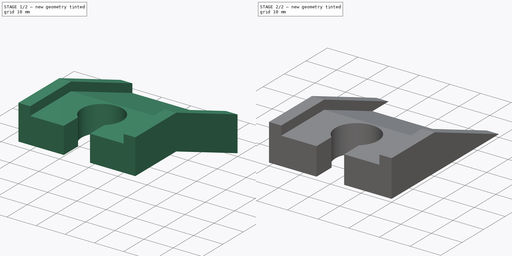
[diagram: build sequence overview — one tinted view per stage of 2, left to right]
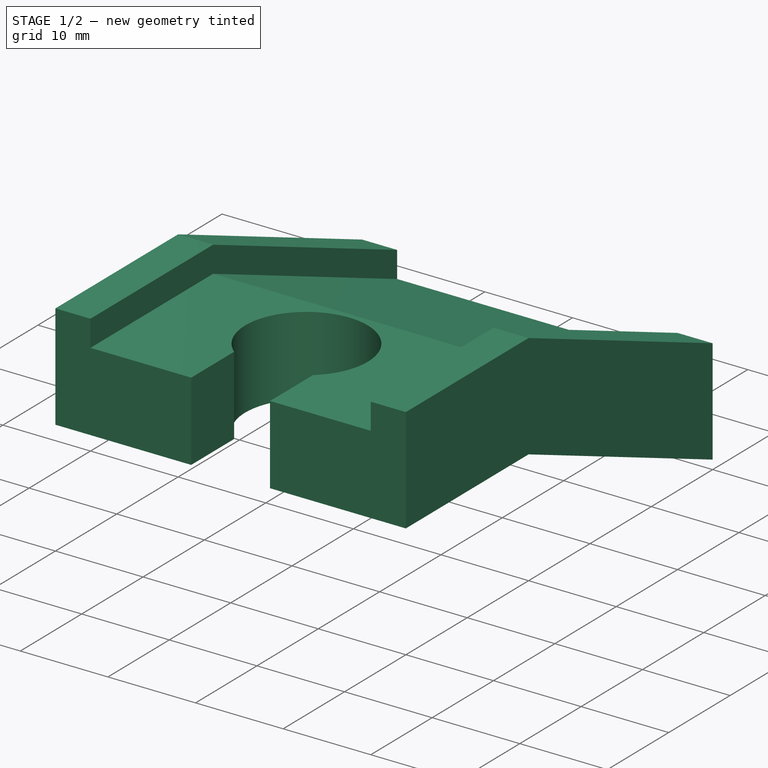
[diagram: stage 1 of 2 — iso view after this stage's code; geometry added in this stage tinted green]
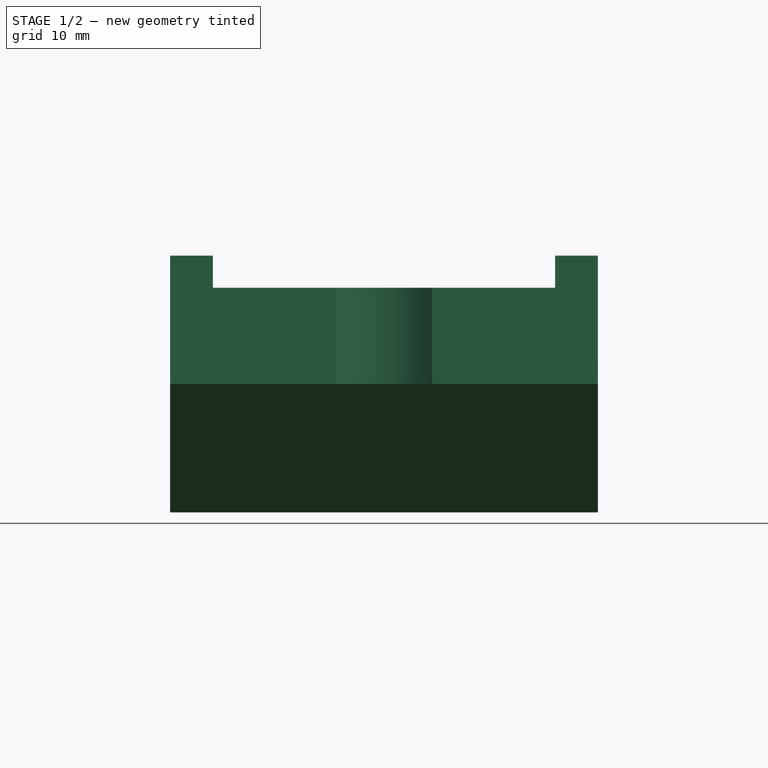
[diagram: stage 1 of 2 — front view after this stage's code; geometry added in this stage tinted green]
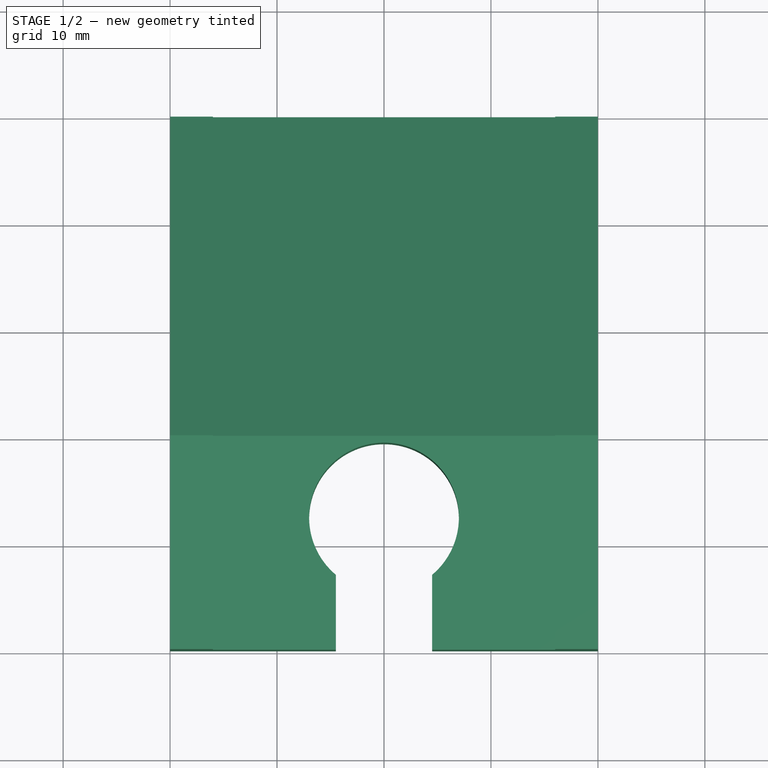
[diagram: stage 1 of 2 — top view after this stage's code; geometry added in this stage tinted green]
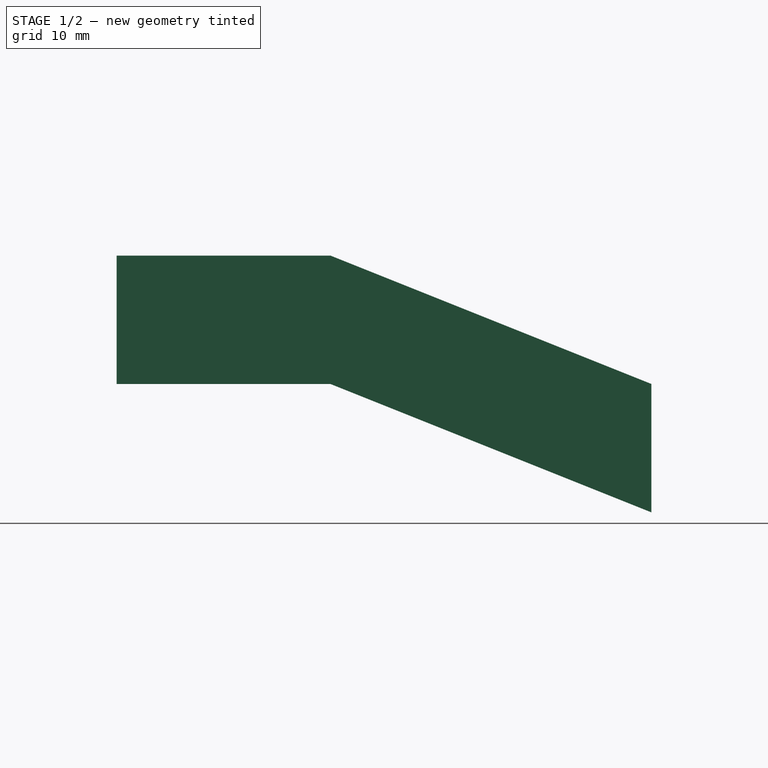
[diagram: stage 1 of 2 — right view after this stage's code; geometry added in this stage tinted green]
FCSTD DOCUMENT  (FreeCAD 0.19R24291 (Git))
Label: road surface ramp F mk3 
License: All rights reserved
LicenseURL: http://en.wikipedia.org/wiki/All_rights_reserved
objects: Sketcher::SketchObject×4, PartDesign::Pocket×2, PartDesign::AdditivePipe×1, PartDesign::Body×1
note: 11 computed .brp shape members not serialized (recipe doc carries the construction recipe); baked Part::Feature solids carry a one-line shape summary decoded from their .brp

FEATURE [Sketcher::SketchObject] Sketch
  FullyConstrained = true
  MapMode = 5
  Placement = pos=(0,0,0) rot=(0.57735,0.57735,0.57735;2.0944rad)
  Support = -> [YZ_Plane]
  sketch-geometry (4):
    g0: LineSegment StartX=0 StartY=0 StartZ=0 EndX=20 EndY=0 EndZ=0
    g1: LineSegment StartX=20 StartY=0 StartZ=0 EndX=20 EndY=-12 EndZ=0
    g2: LineSegment StartX=20 StartY=-12 StartZ=0 EndX=50 EndY=-12 EndZ=0
    g3: LineSegment StartX=20 StartY=0 StartZ=0 EndX=50 EndY=-12 EndZ=0
  constraints (11):
    c: Coincident(g0,g-1)
    c: PointOnObject(g0,g-1)
    c: Distance(g0) = 20
    c: Coincident(g1,g0)
    c: Vertical(g1)
    c: Coincident(g2,g1)
    c: Horizontal(g2)
    c: Coincident(g3,g0)
    c: Coincident(g3,g2)
    c: DistanceX(g0,g3) = 50
    c: Distance(g1) = 12
FEATURE [Sketcher::SketchObject] Sketch001
  FullyConstrained = true
  MapMode = 5
  Placement = pos=(0,0,0) rot=(1,0,0;1.5708rad)
  Support = -> [XZ_Plane]
  sketch-geometry (18):
    g0: LineSegment StartX=-20 StartY=6 StartZ=0 EndX=-20 EndY=-6 EndZ=0
    g1: LineSegment StartX=-20 StartY=6 StartZ=0 EndX=-16 EndY=6 EndZ=0
    g2: LineSegment StartX=-16 StartY=6 StartZ=0 EndX=-16 EndY=3 EndZ=0
    g3: LineSegment StartX=-16 StartY=3 StartZ=0 EndX=-9 EndY=3 EndZ=0
    g4: LineSegment StartX=-9 StartY=3 StartZ=0 EndX=-9 EndY=6 EndZ=0
    g5: LineSegment StartX=-9 StartY=6 StartZ=0 EndX=9 EndY=6 EndZ=0
    g6: LineSegment StartX=9 StartY=6 StartZ=0 EndX=9 EndY=3 EndZ=0
    g7: LineSegment StartX=9 StartY=3 StartZ=0 EndX=16 EndY=3 EndZ=0
    g8: LineSegment StartX=16 StartY=3 StartZ=0 EndX=16 EndY=6 EndZ=0
    g9: LineSegment StartX=16 StartY=6 StartZ=0 EndX=20 EndY=6 EndZ=0
    g10: LineSegment StartX=20 StartY=6 StartZ=0 EndX=20 EndY=-6 EndZ=0
    g11: LineSegment StartX=20 StartY=-6 StartZ=0 EndX=-20 EndY=-6 EndZ=0
    g12: LineSegment StartX=-16 StartY=6 StartZ=0 EndX=-9 EndY=6 EndZ=0
    g13: LineSegment StartX=9 StartY=6 StartZ=0 EndX=16 EndY=6 EndZ=0
    g14: LineSegment StartX=-9 StartY=3 StartZ=0 EndX=9 EndY=3 EndZ=0
    g15: LineSegment StartX=-20 StartY=-6 StartZ=0 EndX=20 EndY=6 EndZ=0
    g16: LineSegment StartX=-20 StartY=6 StartZ=0 EndX=20 EndY=-6 EndZ=0
    g17: GeomPoint X=0 Y=0 Z=0
  constraints (47):
    c: Vertical(g0)
    c: Coincident(g1,g0)
    c: Horizontal(g1)
    c: Coincident(g2,g1)
    c: Vertical(g2)
    c: Coincident(g3,g2)
    c: Horizontal(g3)
    c: Coincident(g4,g3)
    c: Vertical(g4)
    c: Coincident(g5,g4)
    c: Horizontal(g5)
    c: Coincident(g6,g5)
    c: Coincident(g7,g6)
    c: Horizontal(g7)
    c: Coincident(g8,g7)
    c: Coincident(g9,g8)
    c: Horizontal(g9)
    c: Coincident(g10,g9)
    c: Coincident(g11,g10)
    c: Coincident(g11,g0)
    c: Vertical(g10)
    c: Vertical(g8)
    c: Vertical(g6)
    c: Horizontal(g11)
    c: Coincident(g12,g1)
    c: Coincident(g12,g4)
    c: Coincident(g13,g5)
    c: Coincident(g13,g8)
    c: Coincident(g14,g3)
    c: Coincident(g14,g6)
    c: Horizontal(g14)
    c: Horizontal(g13)
    c: Equal(g3,g7)
    c: Equal(g2,g6)
    c: Equal(g9,g1)
    c: DistanceY(g0,g0) = 12
    c: Distance(g5) = 18
    c: Distance(g1) = 4
    c: Distance(g3) = 7
    c: Distance(g8) = 3
    c: Coincident(g15,g0)
    c: Coincident(g15,g9)
    c: Coincident(g16,g0)
    c: Coincident(g16,g10)
    c: PointOnObject(g17,g16)
    c: PointOnObject(g17,g15)
    c: Coincident(g17,g-1)
FEATURE [PartDesign::AdditivePipe] AdditivePipe
  AuxilleryCurvelinear = true
  AuxillerySpineTangent = false
  Binormal = (0,0,0)
  Mode = 0
  Placement = pos=(0,0,0) rot=(1,0,0;1.5708rad)
  Profile = -> Sketch001
  Spine = -> Sketch
  SpineTangent = false
  Transformation = 0
  Transition = 0
FEATURE [Sketcher::SketchObject] Sketch003
  ExternalGeometry = -> [AdditivePipe]
  FullyConstrained = true
  MapMode = 5
  Placement = pos=(0,1e-15,6) rot=(0,0,1;3.14159rad)
  sketch-geometry (6):
    g0: LineSegment StartX=-9 StartY=3e-16 StartZ=0 EndX=-4.5 EndY=3e-16 EndZ=0
    g1: LineSegment StartX=9 StartY=3e-16 StartZ=0 EndX=4.5 EndY=3e-16 EndZ=0
    g2: LineSegment StartX=-4.5 StartY=3e-16 StartZ=0 EndX=4.5 EndY=3e-16 EndZ=0
    g3: LineSegment StartX=4.5 StartY=3e-16 StartZ=0 EndX=4.5 EndY=-7 EndZ=0
    g4: LineSegment StartX=-4.5 StartY=3e-16 StartZ=0 EndX=-4.5 EndY=-7 EndZ=0
    g5: ArcOfCircle CenterX=5.1157e-12 CenterY=-12.3619 CenterZ=0 NormalX=0 NormalY=0 NormalZ=1 AngleXU=0 Radius=7 StartAngle=2.26902 EndAngle=7.15576
  constraints (17):
    c: Coincident(g0,g-3)
    c: PointOnObject(g0,g-3)
    c: Coincident(g1,g-3)
    c: PointOnObject(g1,g-3)
    c: Coincident(g2,g0)
    c: Coincident(g2,g1)
    c: Coincident(g3,g2)
    c: Vertical(g3)
    c: Coincident(g4,g2)
    c: Vertical(g4)
    c: Distance(g2) = 9
    c: Distance(g4) = 7
    c: Diameter(g5) = 14
    c: Equal(g0,g1)
    c: Equal(g3,g4)
    c: Coincident(g5,g4)
    c: Coincident(g5,g3)
FEATURE [PartDesign::Pocket] Pocket
  BaseFeature = -> AdditivePipe
  Length = 5
  Length2 = 100
  Midplane = true
  Placement = pos=(0,0,0) rot=(1,0,0;1.5708rad)
  Profile = -> Sketch003
  Type = 1
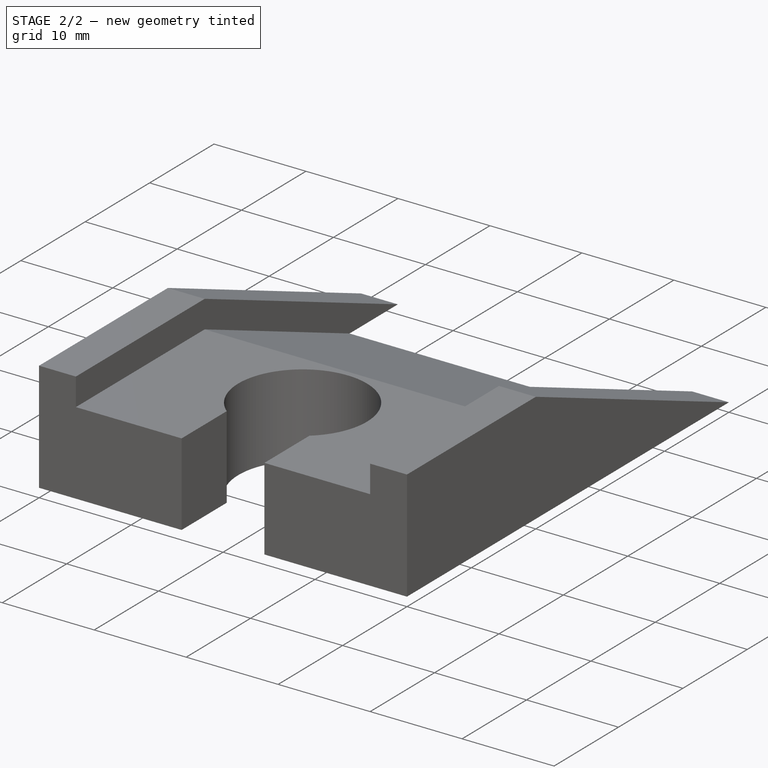
[diagram: stage 2 of 2 — iso view after this stage's code; geometry added in this stage tinted green]
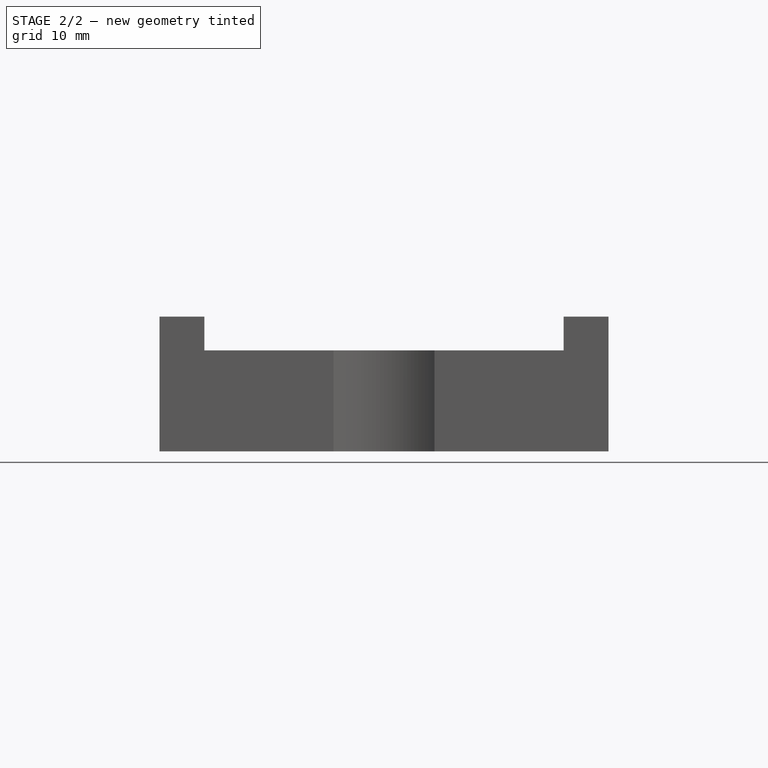
[diagram: stage 2 of 2 — front view after this stage's code; geometry added in this stage tinted green]
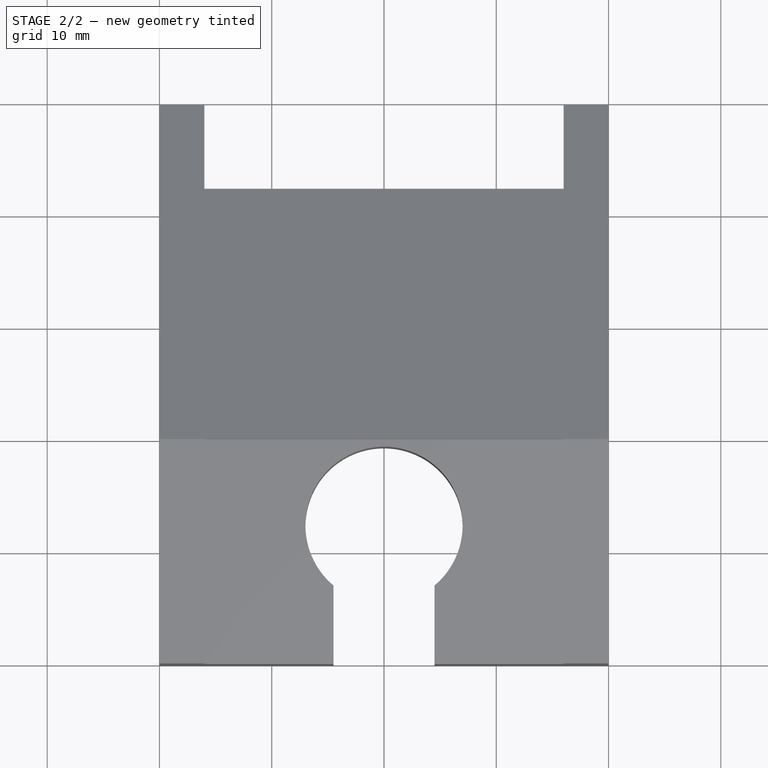
[diagram: stage 2 of 2 — top view after this stage's code; geometry added in this stage tinted green]
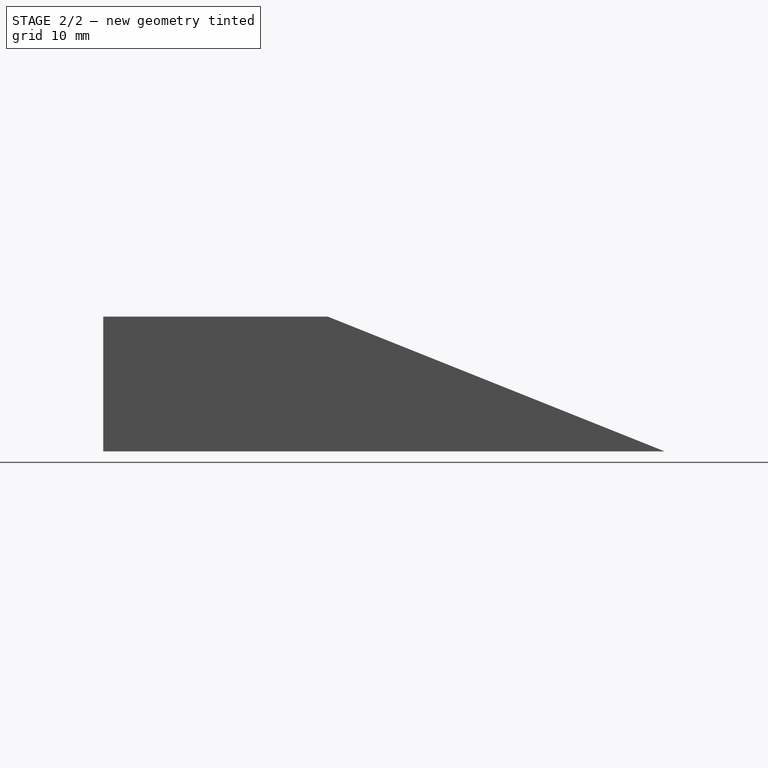
[diagram: stage 2 of 2 — right view after this stage's code; geometry added in this stage tinted green]
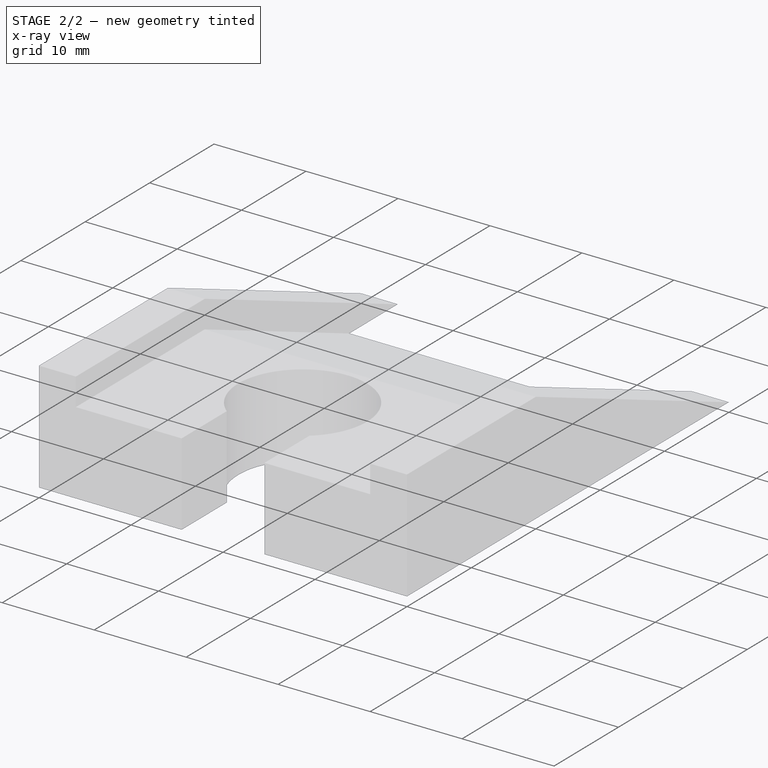
[diagram: stage 2 of 2 — x-ray composite at the iso view; earlier geometry ghosted, this stage's added geometry solid]
FEATURE [Sketcher::SketchObject] Sketch004
  ExternalGeometry = -> [Pocket]
  FullyConstrained = true
  MapMode = 5
  Placement = pos=(0,0,0) rot=(1,0,0;1.5708rad)
  Support = -> [XZ_Plane]
  sketch-geometry (4):
    g0: LineSegment StartX=-20 StartY=-18 StartZ=0 EndX=20 EndY=-18 EndZ=0
    g1: LineSegment StartX=20 StartY=-18 StartZ=0 EndX=20 EndY=-6 EndZ=0
    g2: LineSegment StartX=-20 StartY=-18 StartZ=0 EndX=-20 EndY=-6 EndZ=0
    g3: LineSegment StartX=-20 StartY=-6 StartZ=0 EndX=20 EndY=-6 EndZ=0
  constraints (9):
    c: Coincident(g0,g-4)
    c: Coincident(g0,g-4)
    c: Coincident(g1,g0)
    c: Coincident(g1,g-3)
    c: Coincident(g2,g0)
    c: Vertical(g2)
    c: Coincident(g3,g2)
    c: Coincident(g3,g1)
    c: Horizontal(g3)
FEATURE [PartDesign::Pocket] Pocket001
  BaseFeature = -> Pocket
  Length = 5
  Length2 = 100
  Midplane = true
  Placement = pos=(0,0,0) rot=(1,0,0;1.5708rad)
  Profile = -> Sketch004
  Type = 1
FEATURE [PartDesign::Body] Body
  Group = -> [Sketch,Sketch001,AdditivePipe,Sketch003,Pocket,Sketch004,Pocket001]
  Origin = -> Origin
  Tip = -> Pocket001
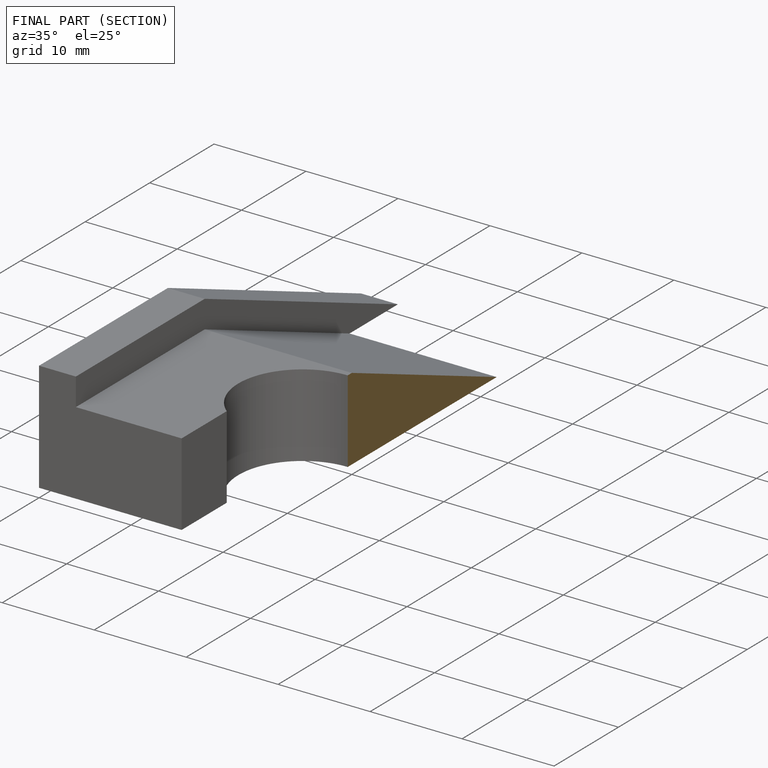
[diagram: finished part — half-section view (interior)]
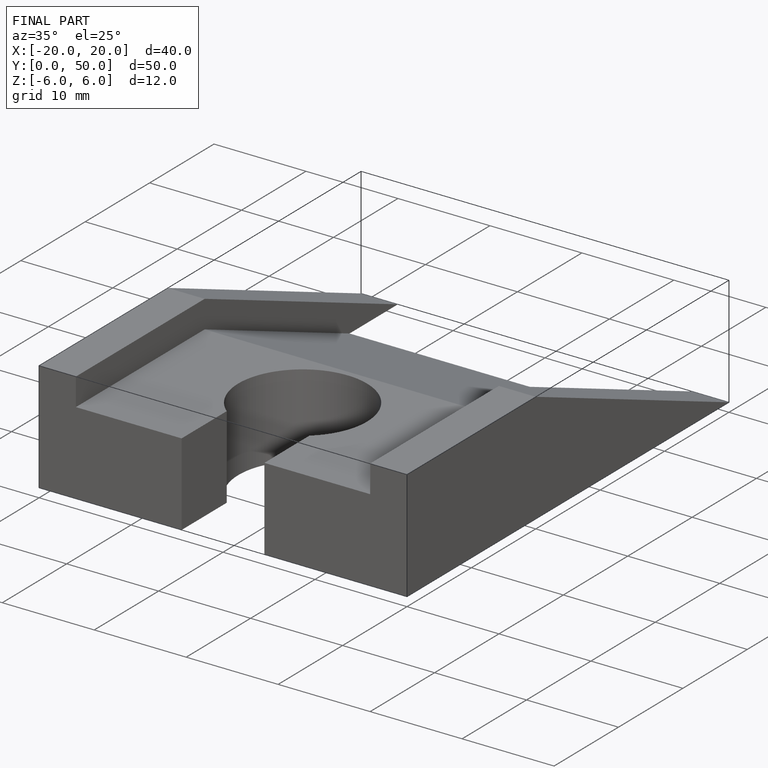
[diagram: finished part — iso view with bounding-box wireframe]
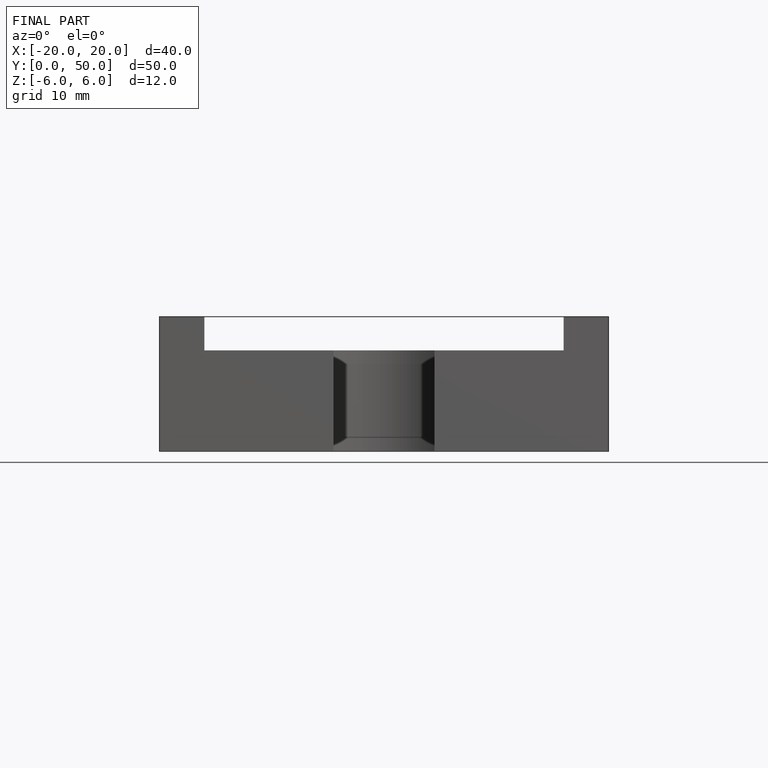
[diagram: finished part — front view with bounding-box wireframe]
